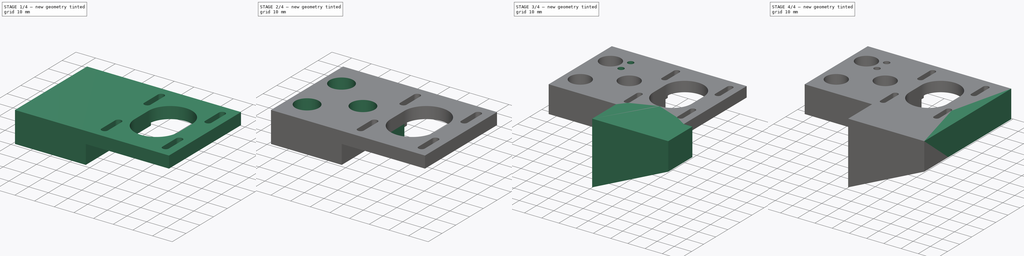
[diagram: build sequence overview — one tinted view per stage of 4, left to right]
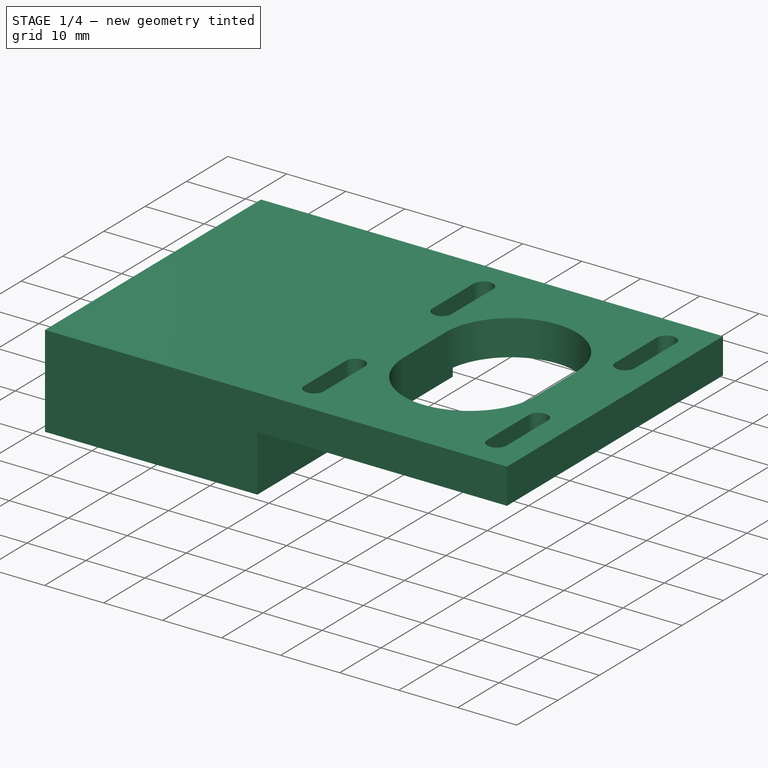
[diagram: stage 1 of 4 — iso view after this stage's code; geometry added in this stage tinted green]
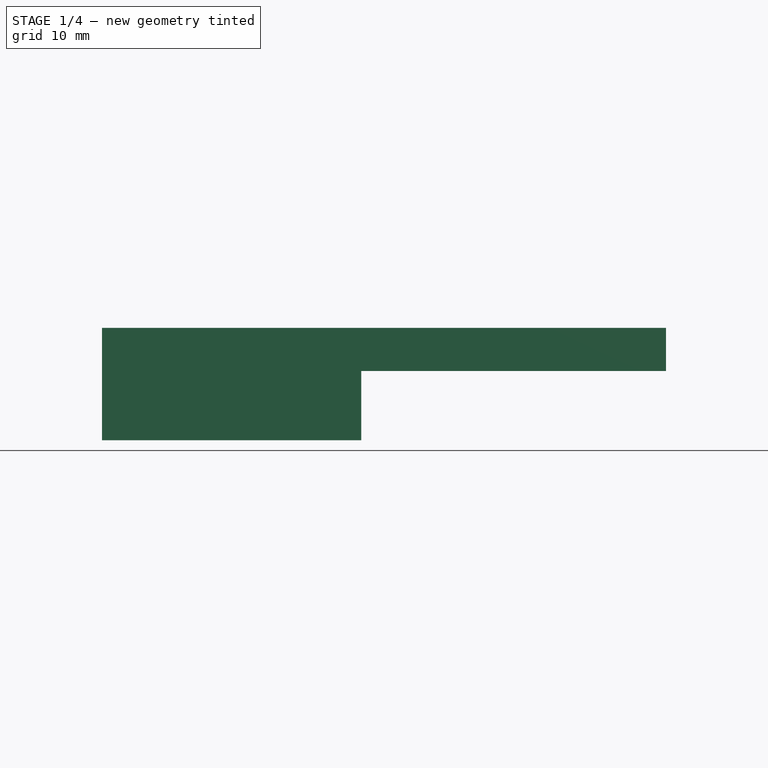
[diagram: stage 1 of 4 — front view after this stage's code; geometry added in this stage tinted green]
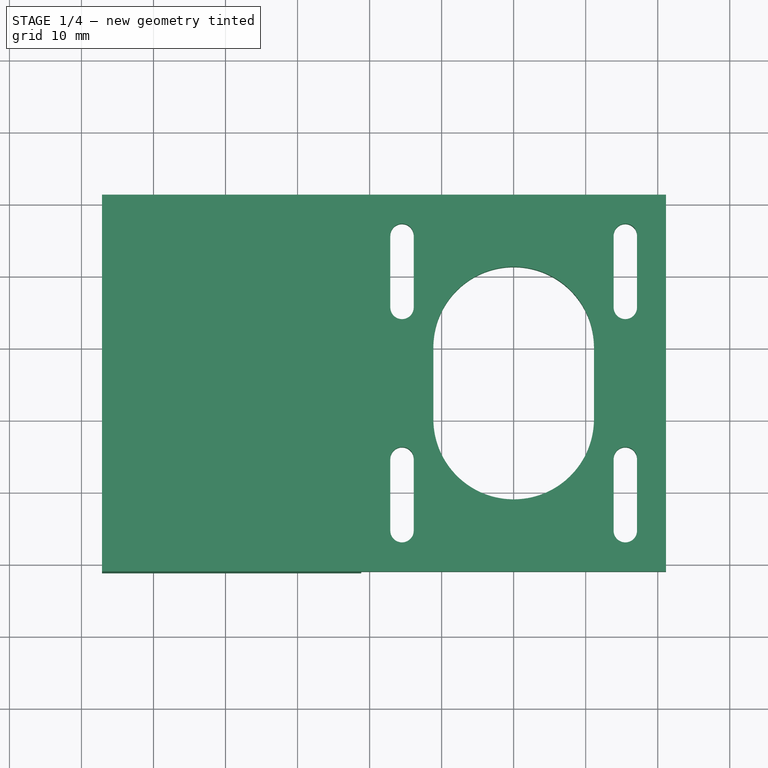
[diagram: stage 1 of 4 — top view after this stage's code; geometry added in this stage tinted green]
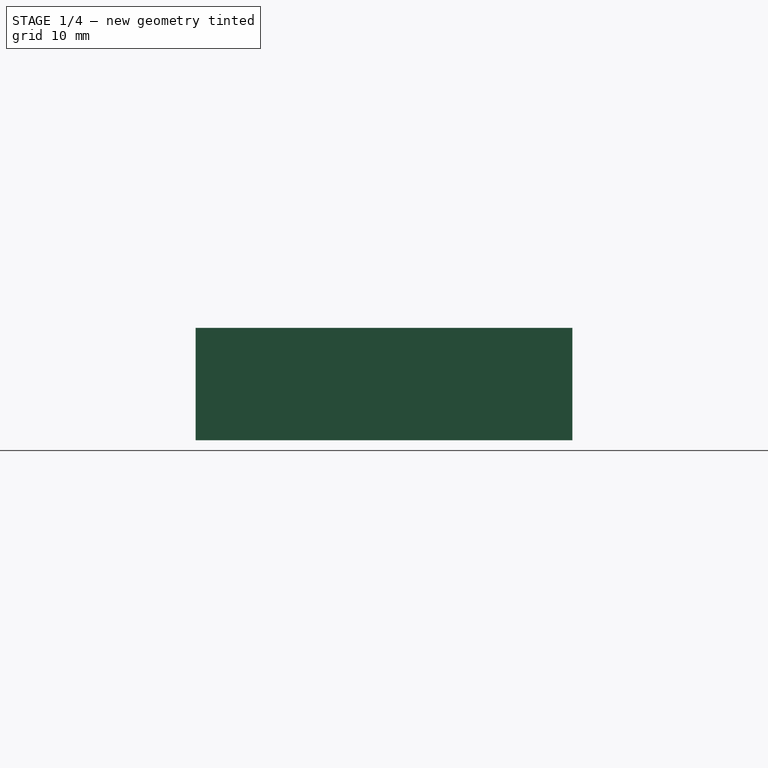
[diagram: stage 1 of 4 — right view after this stage's code; geometry added in this stage tinted green]
FCSTD DOCUMENT  (FreeCAD 0.20R27518 (Git))
Label: A motor bracket
License: All rights reserved
LicenseURL: http://en.wikipedia.org/wiki/All_rights_reserved
objects: Sketcher::SketchObject×13, PartDesign::Pocket×7, PartDesign::Pad×6, PartDesign::Plane×2, Part::Feature×1, PartDesign::SubShapeBinder×1, PartDesign::Body×1
note: 44 computed .brp shape members not serialized (recipe doc carries the construction recipe); baked Part::Feature solids carry a one-line shape summary decoded from their .brp

FEATURE [Part::Feature] Part__Feature  label="17HS4401"
  Placement = pos=(-6e-15,0,46) rot=(0,1,0;3.14159rad)
  shape: bbox 42.3 x 45.3 x 64 mm, 44 faces (baked)
FEATURE [PartDesign::SubShapeBinder] Binder
  BindCopyOnChange = 0
  BindMode = 0
  ClaimChildren = false
  Context = -> Body [Binder.]
  Fuse = false
  MakeFace = true
  PartialLoad = false
  Relative = true
  Support = -> [Part__Feature]
  _Version = 2
FEATURE [Sketcher::SketchObject] Sketch
  ExternalGeometry = -> [Binder]
  FullyConstrained = true
  MapMode = 5
  Support = -> [XY_Plane]
  sketch-geometry (26):
    g0: LineSegment StartX=-21.15 StartY=21.15 StartZ=0 EndX=21.15 EndY=21.15 EndZ=0
    g1: LineSegment StartX=21.15 StartY=21.15 StartZ=0 EndX=21.15 EndY=-31.15 EndZ=0
    g2: LineSegment StartX=21.15 StartY=-31.15 StartZ=0 EndX=-21.15 EndY=-31.15 EndZ=0
    g3: LineSegment StartX=-21.15 StartY=-31.15 StartZ=0 EndX=-21.15 EndY=21.15 EndZ=0
    g4: ArcOfCircle CenterX=-15.5 CenterY=15.5 CenterZ=0 NormalX=0 NormalY=0 NormalZ=1 AngleXU=0 Radius=1.625 StartAngle=0 EndAngle=3.14159
    g5: ArcOfCircle CenterX=-15.5 CenterY=-15.5 CenterZ=0 NormalX=0 NormalY=0 NormalZ=1 AngleXU=0 Radius=1.625 StartAngle=0 EndAngle=3.14159
    g6: ArcOfCircle CenterX=0 CenterY=0 CenterZ=0 NormalX=0 NormalY=0 NormalZ=1 AngleXU=0 Radius=11.15 StartAngle=0 EndAngle=3.14159
    g7: ArcOfCircle CenterX=15.5 CenterY=15.5 CenterZ=0 NormalX=0 NormalY=0 NormalZ=1 AngleXU=0 Radius=1.625 StartAngle=0 EndAngle=3.14159
    g8: ArcOfCircle CenterX=15.5 CenterY=-15.5 CenterZ=0 NormalX=0 NormalY=0 NormalZ=1 AngleXU=0 Radius=1.625 StartAngle=0 EndAngle=3.14159
    g9: LineSegment StartX=-17.125 StartY=15.5 StartZ=0 EndX=-17.125 EndY=5.5 EndZ=0
    g10: ArcOfCircle CenterX=-15.5 CenterY=5.5 CenterZ=0 NormalX=0 NormalY=0 NormalZ=1 AngleXU=0 Radius=1.625 StartAngle=3.14159 EndAngle=6.28318
    g11: LineSegment StartX=13.875 StartY=15.5 StartZ=0 EndX=13.875 EndY=5.5 EndZ=0
    g12: LineSegment StartX=17.125 StartY=15.5 StartZ=0 EndX=17.125 EndY=5.5 EndZ=0
    g13: LineSegment StartX=-17.125 StartY=-15.5 StartZ=0 EndX=-17.125 EndY=-25.5 EndZ=0
    g14: LineSegment StartX=-13.875 StartY=-15.5 StartZ=0 EndX=-13.875 EndY=-25.5 EndZ=0
    g15: LineSegment StartX=13.875 StartY=-15.5 StartZ=0 EndX=13.875 EndY=-25.5 EndZ=0
    g16: LineSegment StartX=17.125 StartY=-15.5 StartZ=0 EndX=17.125 EndY=-25.5 EndZ=0
    g17: LineSegment StartX=-13.875 StartY=15.5 StartZ=0 EndX=-13.875 EndY=5.5 EndZ=0
    g18: ArcOfCircle CenterX=15.5 CenterY=5.5 CenterZ=0 NormalX=0 NormalY=0 NormalZ=1 AngleXU=0 Radius=1.625 StartAngle=3.14159 EndAngle=6.28319
    g19: ArcOfCircle CenterX=-15.5 CenterY=-25.5 CenterZ=0 NormalX=0 NormalY=0 NormalZ=1 AngleXU=0 Radius=1.625 StartAngle=3.14159 EndAngle=6.28319
    g20: ArcOfCircle CenterX=15.5 CenterY=-25.5 CenterZ=0 NormalX=0 NormalY=0 NormalZ=1 AngleXU=0 Radius=1.625 StartAngle=3.14159 EndAngle=6.28319
    g21: LineSegment StartX=-11.15 StartY=1.4e-15 StartZ=0 EndX=-11.15 EndY=-10 EndZ=0
    g22: LineSegment StartX=11.15 StartY=0 StartZ=0 EndX=11.15 EndY=-10 EndZ=0
    g23: ArcOfCircle CenterX=-1e-16 CenterY=-10 CenterZ=0 NormalX=0 NormalY=0 NormalZ=1 AngleXU=0 Radius=11.15 StartAngle=3.14159 EndAngle=6.28319
    g24: LineSegment StartX=-15.5 StartY=15.5 StartZ=0 EndX=-15.5 EndY=21.15 EndZ=0
    g25: LineSegment StartX=-15.5 StartY=-25.5 StartZ=0 EndX=-15.5 EndY=-31.15 EndZ=0
  constraints (82):
    c: Coincident(g0,g1)
    c: Coincident(g1,g2)
    c: Coincident(g2,g3)
    c: Coincident(g3,g0)
    c: Horizontal(g2)
    c: Vertical(g1)
    c: Vertical(g3)
    c: Coincident(g4,g-3)
    c: Coincident(g5,g-5)
    c: Diameter(g4) = 3.25
    c: Coincident(g6,g-1)
    c: PointOnObject(g6,g-1)
    c: PointOnObject(g6,g-1)
    c: Diameter(g6) = 22.3
    c: Horizontal(g4,g4)
    c: Equal(g5,g4)
    c: Horizontal(g5,g5)
    c: Horizontal(g5,g5)
    c: Horizontal(g4,g4)
    c: Coincident(g7,g-4)
    c: Horizontal(g7,g7)
    c: Equal(g4,g7)
    c: Coincident(g8,g-6)
    c: Equal(g8,g4)
    c: Horizontal(g8,g8)
    c: Horizontal(g8,g8)
    c: Horizontal(g7,g7)
    c: Coincident(g9,g4)
    c: Vertical(g9)
    c: Coincident(g10,g9)
    c: Equal(g10,g4)
    c: Vertical(g10,g4)
    c: DistanceY(g10,g4) = 10
    c: Coincident(g11,g7)
    c: Vertical(g11)
    c: Coincident(g12,g7)
    c: Vertical(g12)
    c: Coincident(g13,g5)
    c: Vertical(g13)
    c: Coincident(g14,g5)
    c: Vertical(g14)
    c: Coincident(g15,g8)
    c: Coincident(g16,g8)
    c: Vertical(g16)
    c: Vertical(g15)
    c: Equal(g9,g11)
    c: Equal(g11,g12)
    c: Equal(g12,g13)
    c: Equal(g13,g14)
    c: Equal(g14,g15)
    c: Equal(g15,g16)
    c: Coincident(g17,g4)
    c: Coincident(g17,g10)
    c: Equal(g17,g9)
    c: Coincident(g18,g11)
    c: Coincident(g18,g12)
    c: Coincident(g19,g13)
    c: Coincident(g19,g14)
    c: Coincident(g20,g15)
    c: Coincident(g20,g16)
    c: Equal(g10,g19)
    c: Equal(g19,g18)
    c: Equal(g18,g20)
    c: Coincident(g21,g6)
    c: Vertical(g21)
    c: Coincident(g22,g6)
    c: Vertical(g22)
    c: Equal(g9,g21)
    c: Equal(g21,g22)
    c: Coincident(g23,g21)
    c: Coincident(g23,g22)
    c: Equal(g6,g23)
    c: Symmetric(g0,g0,g-2)
    c: Coincident(g24,g4)
    c: Vertical(g24)
    c: PointOnObject(g24,g0)
    c: Coincident(g25,g19)
    c: PointOnObject(g25,g2)
    c: Vertical(g25)
    c: Equal(g25,g24)
    c: PointOnObject(g-8,g3)
    c: PointOnObject(g-7,g0)
FEATURE [PartDesign::Pad] Pad
  Direction = (0,0,1)
  Length = 6
  Length2 = 100
  Profile = -> Sketch
  ReferenceAxis = -> Sketch [N_Axis]
  Refine = true
  Type = 0
FEATURE [Sketcher::SketchObject] Sketch001
  ExternalGeometry = -> [Pad]
  FullyConstrained = true
  MapMode = 5
  Placement = pos=(-21.15,0,0) rot=(0.57735,-0.57735,-0.57735;2.0944rad)
  Support = -> [Pad]
  sketch-geometry (4):
    g0: LineSegment StartX=-21.15 StartY=6 StartZ=0 EndX=31.15 EndY=6 EndZ=0
    g1: LineSegment StartX=31.15 StartY=6 StartZ=0 EndX=31.15 EndY=-9.6 EndZ=0
    g2: LineSegment StartX=31.15 StartY=-9.6 StartZ=0 EndX=-21.15 EndY=-9.6 EndZ=0
    g3: LineSegment StartX=-21.15 StartY=-9.6 StartZ=0 EndX=-21.15 EndY=6 EndZ=0
  constraints (10):
    c: Coincident(g0,g1)
    c: Coincident(g1,g2)
    c: Coincident(g2,g3)
    c: Coincident(g3,g0)
    c: Horizontal(g2)
    c: Vertical(g1)
    c: Vertical(g3)
    c: DistanceY(g1,g-1) = 9.6
    c: Coincident(g-3,g0)
    c: Coincident(g0,g-4)
FEATURE [PartDesign::Pad] Pad001
  BaseFeature = -> Pad
  Direction = (-1,0,0)
  Length = 36
  Length2 = 100
  Profile = -> Sketch001
  ReferenceAxis = -> Sketch001 [N_Axis]
  Refine = true
  Type = 0
FEATURE [Sketcher::SketchObject] Sketch002
  ExternalGeometry = -> [Pad001]
  FullyConstrained = true
  MapMode = 5
  Placement = pos=(0,21.15,0) rot=(0,0.707107,0.707107;3.14159rad)
  Support = -> [Pad001]
  sketch-geometry (4):
    g0: LineSegment StartX=21.15 StartY=0 StartZ=0 EndX=36.15 EndY=0 EndZ=0
    g1: LineSegment StartX=36.15 StartY=0 StartZ=0 EndX=36.15 EndY=-9.6 EndZ=0
    g2: LineSegment StartX=36.15 StartY=-9.6 StartZ=0 EndX=21.15 EndY=-9.6 EndZ=0
    g3: LineSegment StartX=21.15 StartY=-9.6 StartZ=0 EndX=21.15 EndY=0 EndZ=0
  constraints (10):
    c: Coincident(g0,g1)
    c: Coincident(g1,g2)
    c: Coincident(g2,g3)
    c: Coincident(g3,g0)
    c: Horizontal(g0)
    c: Horizontal(g2)
    c: Vertical(g1)
    c: Coincident(g0,g-3)
    c: Coincident(g2,g-3)
    c: DistanceX(g0,g0) = 15
FEATURE [PartDesign::Pocket] Pocket
  BaseFeature = -> Pad001
  Direction = (0,-1,2e-16)
  Length = 5
  Length2 = 100
  Profile = -> Sketch002
  ReferenceAxis = -> Sketch002 [N_Axis]
  Refine = true
  Type = 0
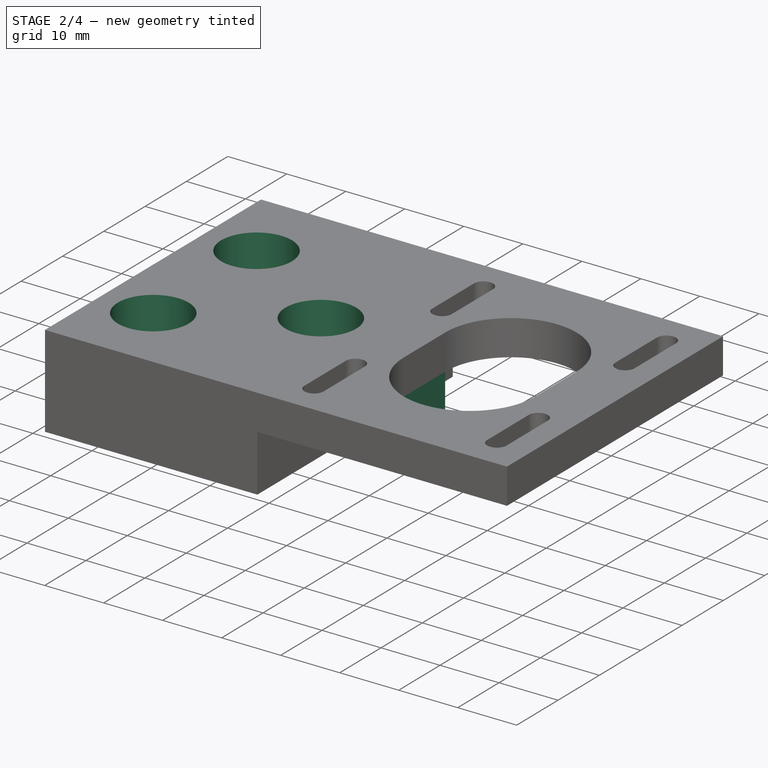
[diagram: stage 2 of 4 — iso view after this stage's code; geometry added in this stage tinted green]
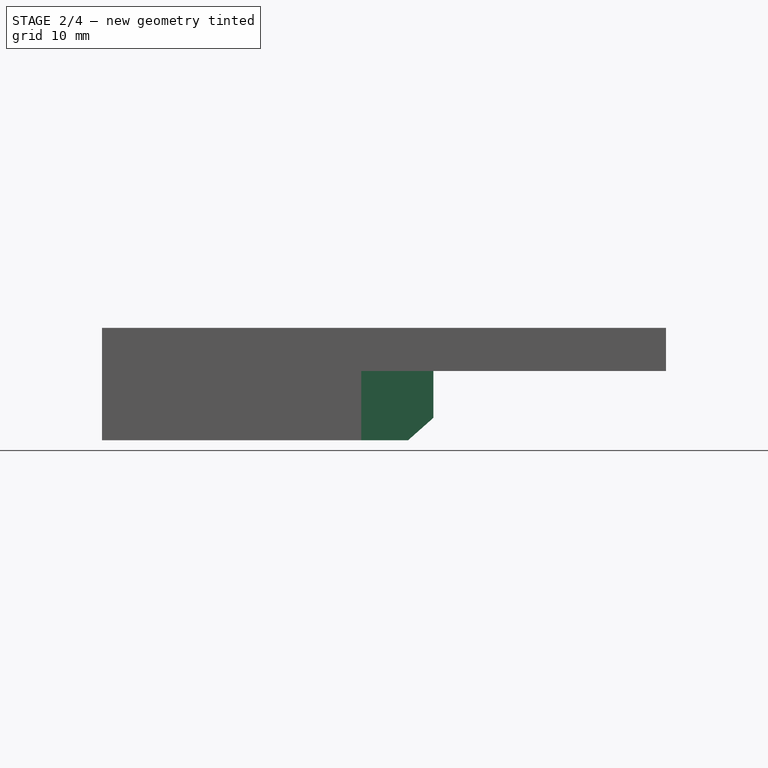
[diagram: stage 2 of 4 — front view after this stage's code; geometry added in this stage tinted green]
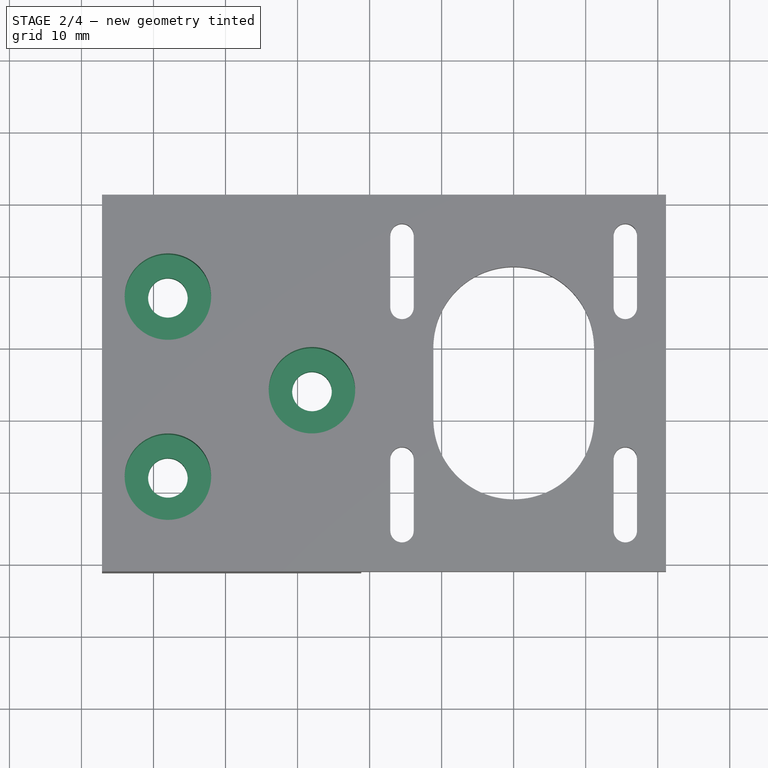
[diagram: stage 2 of 4 — top view after this stage's code; geometry added in this stage tinted green]
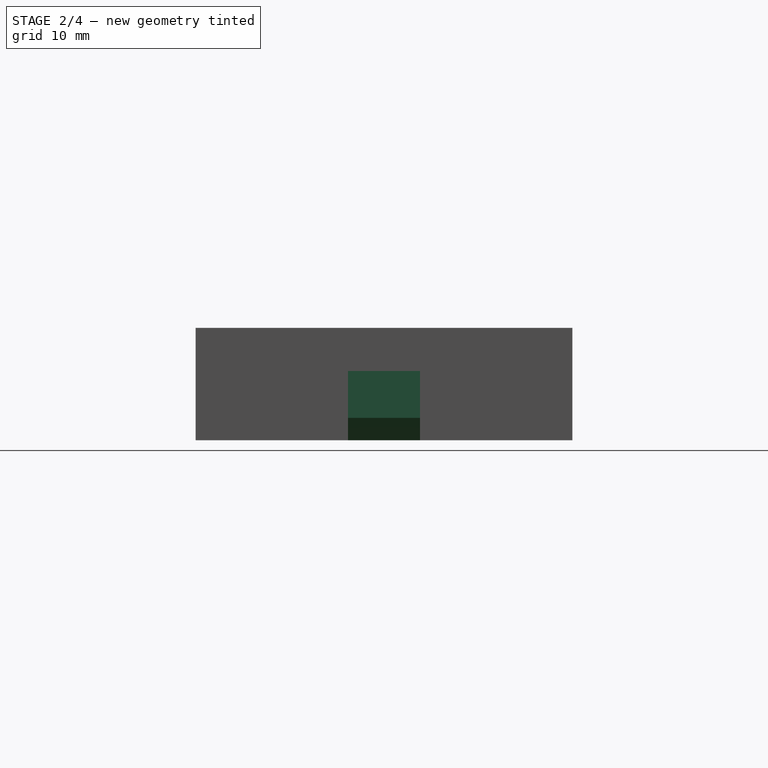
[diagram: stage 2 of 4 — right view after this stage's code; geometry added in this stage tinted green]
FEATURE [Sketcher::SketchObject] Sketch003
  FullyConstrained = true
  MapMode = 5
  Placement = pos=(0,0,-9.6) rot=(1,0,0;3.14159rad)
  Support = -> [Pocket]
  sketch-geometry (3):
    g0: Circle CenterX=-48 CenterY=18 CenterZ=0 NormalX=0 NormalY=0 NormalZ=1 AngleXU=0 Radius=2.75
    g1: Circle CenterX=-48 CenterY=-7 CenterZ=0 NormalX=0 NormalY=0 NormalZ=1 AngleXU=0 Radius=2.75
    g2: Circle CenterX=-28 CenterY=6 CenterZ=0 NormalX=0 NormalY=0 NormalZ=1 AngleXU=0 Radius=2.75
  constraints (9):
    c: Diameter(g0) = 5.5
    c: Equal(g0,g1)
    c: Vertical(g1,g0)
    c: DistanceY(g1,g-1) = 7
    c: DistanceY(g-1,g0) = 18
    c: DistanceX(g0,g-1) = 48
    c: Equal(g0,g2)
    c: DistanceX(g0,g2) = 20
    c: DistanceY(g2,g0) = 12
FEATURE [PartDesign::Pocket] Pocket001
  BaseFeature = -> Pocket
  Direction = (0,0,1)
  Length = 5
  Length2 = 100
  Profile = -> Sketch003
  ReferenceAxis = -> Sketch003 [N_Axis]
  Refine = true
  Type = 1
FEATURE [Sketcher::SketchObject] Sketch004
  ExternalGeometry = -> [Pocket001]
  FullyConstrained = true
  MapMode = 5
  Placement = pos=(0,0,6) rot=(0,0,1;0rad)
  Support = -> [Pocket001]
  sketch-geometry (3):
    g0: Circle CenterX=-48 CenterY=7 CenterZ=0 NormalX=0 NormalY=0 NormalZ=1 AngleXU=0 Radius=6
    g1: Circle CenterX=-48 CenterY=-18 CenterZ=0 NormalX=0 NormalY=0 NormalZ=1 AngleXU=0 Radius=6
    g2: Circle CenterX=-28 CenterY=-6 CenterZ=0 NormalX=0 NormalY=0 NormalZ=1 AngleXU=0 Radius=6
  constraints (6):
    c: Coincident(g1,g-3)
    c: Equal(g1,g0)
    c: Diameter(g0) = 12
    c: Coincident(g0,g-4)
    c: Coincident(g2,g-5)
    c: Equal(g0,g2)
FEATURE [PartDesign::Pocket] Pocket002
  BaseFeature = -> Pocket001
  Direction = (0,0,-1)
  Length = 0
  Length2 = 100
  Offset = 6
  Profile = -> Sketch004
  ReferenceAxis = -> Sketch004 [N_Axis]
  Refine = true
  Reversed = true
  Type = 3
  UpToFace = -> Pocket001 [Face7]
FEATURE [Sketcher::SketchObject] Sketch006
  FullyConstrained = false
  MapMode = 5
  Placement = pos=(0,0,0) rot=(1,0,0;1.5708rad)
  Support = -> [XZ_Plane]
  sketch-geometry (5):
    g0: LineSegment StartX=-11.15 StartY=-6.5 StartZ=0 EndX=-14.65 EndY=-9.6 EndZ=0
    g1: LineSegment StartX=-21.15 StartY=-9.6 StartZ=0 EndX=-14.65 EndY=-9.6 EndZ=0
    g2: LineSegment StartX=-11.15 StartY=0 StartZ=0 EndX=-11.15 EndY=-6.5 EndZ=0
    g3: LineSegment StartX=-21.15 StartY=-9.6 StartZ=0 EndX=-21.15 EndY=0 EndZ=0
    g4: LineSegment StartX=-21.15 StartY=0 StartZ=0 EndX=-11.15 EndY=0 EndZ=0
  constraints (9):
    c: Horizontal(g1)
    c: Vertical(g2)
    c: Coincident(g0,g2)
    c: Coincident(g1,g0)
    c: Equal(g1,g2)
    c: DistanceX(g1,g1) = 6.5
    c: Coincident(g3,g1)
    c: Coincident(g4,g3)
    c: Coincident(g4,g2)
FEATURE [PartDesign::Pad] Pad002
  BaseFeature = -> Pocket002
  Direction = (0,-1,-2e-16)
  Length = 10
  Length2 = 100
  Profile = -> Sketch006
  ReferenceAxis = -> Sketch006 [N_Axis]
  Refine = true
  Type = 0
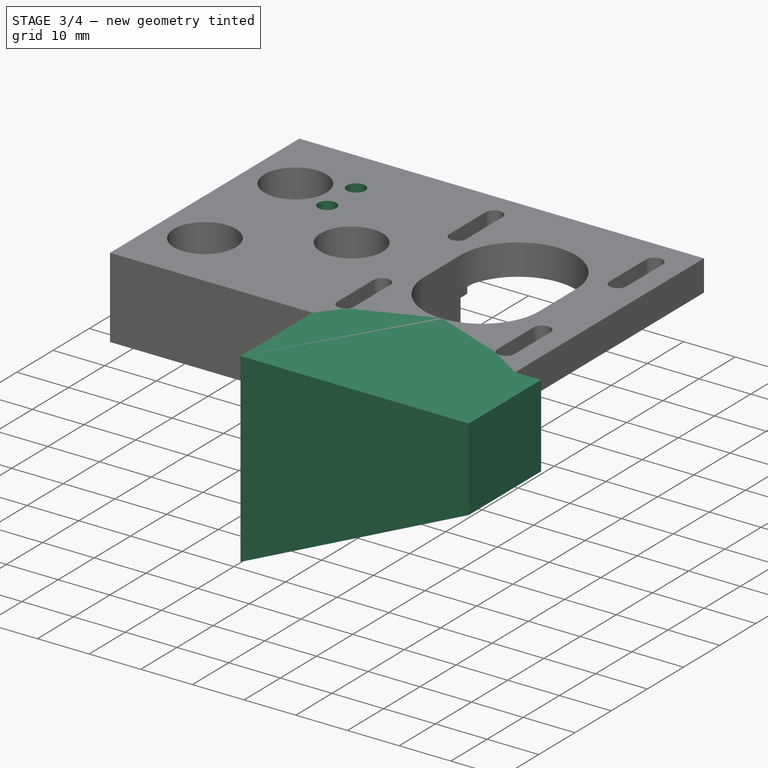
[diagram: stage 3 of 4 — iso view after this stage's code; geometry added in this stage tinted green]
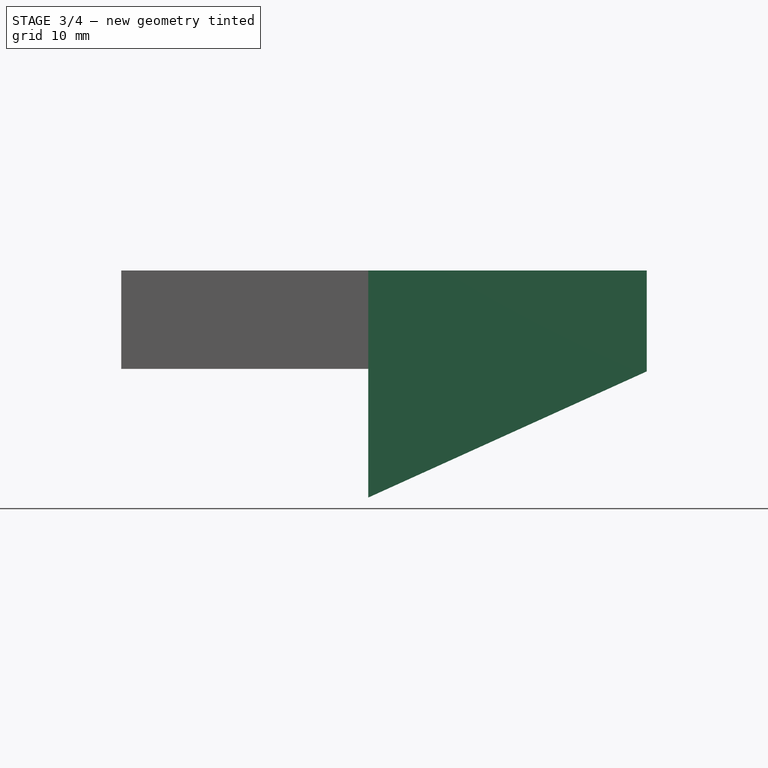
[diagram: stage 3 of 4 — front view after this stage's code; geometry added in this stage tinted green]
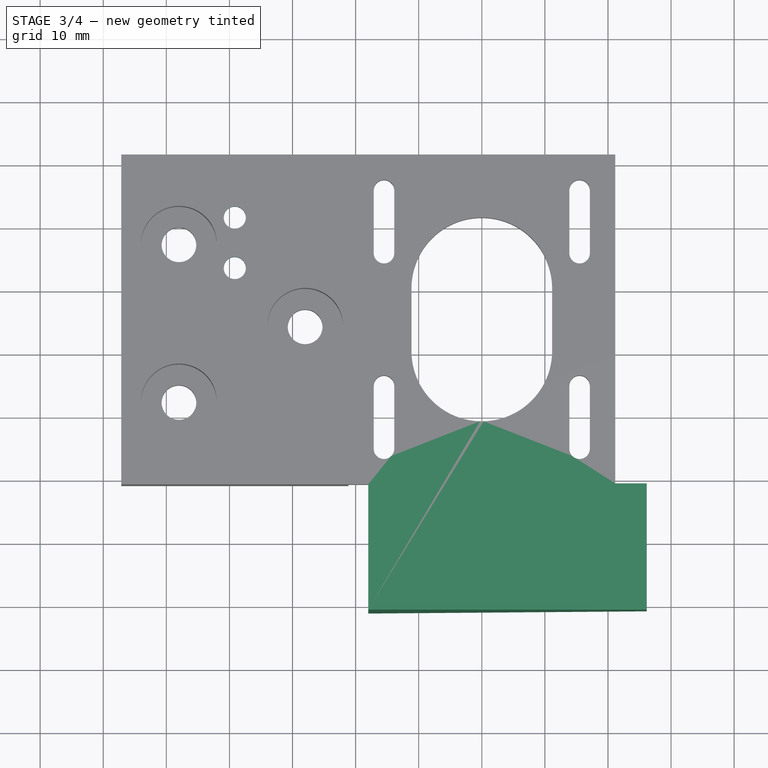
[diagram: stage 3 of 4 — top view after this stage's code; geometry added in this stage tinted green]
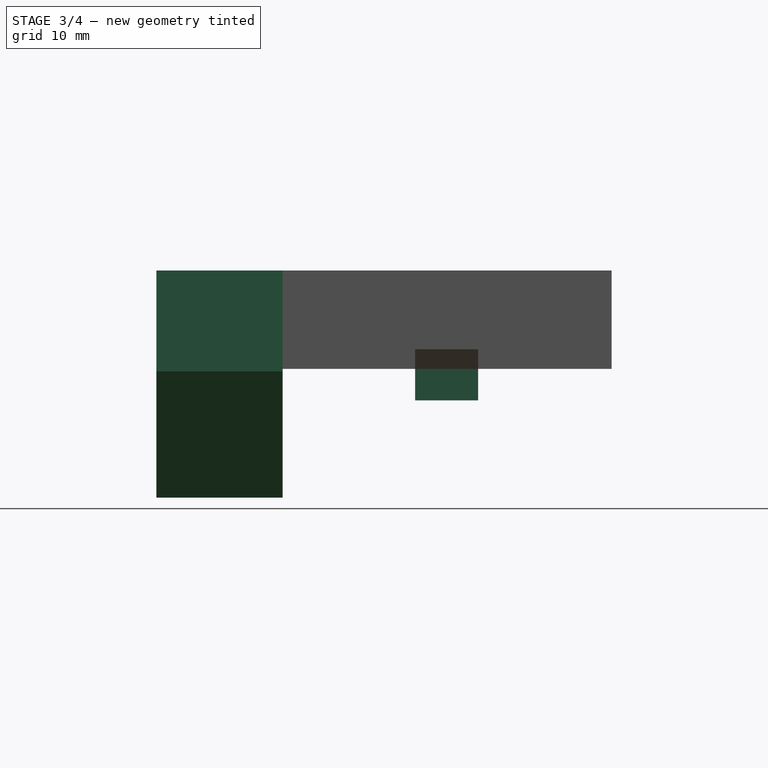
[diagram: stage 3 of 4 — right view after this stage's code; geometry added in this stage tinted green]
FEATURE [Sketcher::SketchObject] Sketch007
  FullyConstrained = true
  MapMode = 5
  Placement = pos=(-2e-16,1e-16,-9.6) rot=(1,0,0;3.14159rad)
  Support = -> [Pad002]
  sketch-geometry (4):
    g0: LineSegment StartX=-18 StartY=10 StartZ=0 EndX=-14.65 EndY=10 EndZ=0
    g1: LineSegment StartX=-14.65 StartY=10 StartZ=0 EndX=-14.65 EndY=0 EndZ=0
    g2: LineSegment StartX=-14.65 StartY=0 StartZ=0 EndX=-18 EndY=0 EndZ=0
    g3: LineSegment StartX=-18 StartY=0 StartZ=0 EndX=-18 EndY=10 EndZ=0
  constraints (12):
    c: Coincident(g0,g1)
    c: Coincident(g1,g2)
    c: Coincident(g2,g3)
    c: Coincident(g3,g0)
    c: Horizontal(g0)
    c: Horizontal(g2)
    c: Vertical(g1)
    c: Vertical(g3)
    c: PointOnObject(g1,g-1)
    c: DistanceX(g0,g0) = 3.35
    c: DistanceY(g1,g1) = 10
    c: DistanceX(g1,g-1) = 14.65
FEATURE [PartDesign::Pad] Pad003
  BaseFeature = -> Pad002
  Direction = (0,0,-1)
  Length = 5
  Length2 = 100
  Profile = -> Sketch007
  ReferenceAxis = -> Sketch007 [N_Axis]
  Refine = true
  Type = 0
FEATURE [Sketcher::SketchObject] Sketch008
  FullyConstrained = true
  MapMode = 5
  Placement = pos=(0,0,6) rot=(0,0,1;0rad)
  Support = -> [Pad003]
  sketch-geometry (2):
    g0: Circle CenterX=-39.15 CenterY=3.15 CenterZ=0 NormalX=0 NormalY=0 NormalZ=1 AngleXU=0 Radius=1.75
    g1: Circle CenterX=-39.15 CenterY=11.15 CenterZ=0 NormalX=0 NormalY=0 NormalZ=1 AngleXU=0 Radius=1.75
  constraints (6):
    c: Diameter(g0) = 3.5
    c: Vertical(g0,g1)
    c: DistanceY(g0,g1) = 8
    c: Equal(g0,g1)
    c: DistanceX(g0,g-1) = 39.15
    c: DistanceY(g0) = 3.15
FEATURE [PartDesign::Pocket] Pocket004
  BaseFeature = -> Pad003
  Direction = (0,0,-1)
  Length = 5
  Length2 = 100
  Profile = -> Sketch008
  ReferenceAxis = -> Sketch008 [N_Axis]
  Refine = true
  Type = 1
FEATURE [Sketcher::SketchObject] Sketch009
  ExternalGeometry = -> [Pocket004]
  FullyConstrained = true
  MapMode = 5
  Placement = pos=(-2e-16,1e-16,-9.6) rot=(1,0,0;3.14159rad)
  Support = -> [Pocket004]
  sketch-geometry (14):
    g0: LineSegment StartX=-35.9 StartY=-3.15 StartZ=0 EndX=-37.525 EndY=-0.335417 EndZ=0
    g1: LineSegment StartX=-37.525 StartY=-0.335417 StartZ=0 EndX=-40.775 EndY=-0.335417 EndZ=0
    g2: LineSegment StartX=-40.775 StartY=-0.335417 StartZ=0 EndX=-42.4 EndY=-3.15 EndZ=0
    g3: LineSegment StartX=-42.4 StartY=-3.15 StartZ=0 EndX=-40.775 EndY=-5.96458 EndZ=0
    g4: LineSegment StartX=-40.775 StartY=-5.96458 StartZ=0 EndX=-37.525 EndY=-5.96458 EndZ=0
    g5: LineSegment StartX=-37.525 StartY=-5.96458 StartZ=0 EndX=-35.9 EndY=-3.15 EndZ=0
    g6: Circle CenterX=-39.15 CenterY=-3.15 CenterZ=0 NormalX=0 NormalY=0 NormalZ=1 AngleXU=0 Radius=3.25
    g7: LineSegment StartX=-35.9 StartY=-11.15 StartZ=0 EndX=-37.525 EndY=-8.33542 EndZ=0
    g8: LineSegment StartX=-37.525 StartY=-8.33542 StartZ=0 EndX=-40.775 EndY=-8.33542 EndZ=0
    g9: LineSegment StartX=-40.775 StartY=-8.33542 StartZ=0 EndX=-42.4 EndY=-11.15 EndZ=0
    g10: LineSegment StartX=-42.4 StartY=-11.15 StartZ=0 EndX=-40.775 EndY=-13.9646 EndZ=0
    g11: LineSegment StartX=-40.775 StartY=-13.9646 StartZ=0 EndX=-37.525 EndY=-13.9646 EndZ=0
    g12: LineSegment StartX=-37.525 StartY=-13.9646 StartZ=0 EndX=-35.9 EndY=-11.15 EndZ=0
    g13: Circle CenterX=-39.15 CenterY=-11.15 CenterZ=0 NormalX=0 NormalY=0 NormalZ=1 AngleXU=0 Radius=3.25
  constraints (32):
    c: Coincident(g0,g1)
    c: Coincident(g1,g2)
    c: Coincident(g2,g3)
    c: Coincident(g3,g4)
    c: Coincident(g4,g5)
    c: Coincident(g5,g0)
    c: Equal(g0, g1-g5) x5
    c: PointOnObject(g0,g6)
    c: PointOnObject(g1,g6)
    c: PointOnObject(g2,g6)
    c: PointOnObject(g3,g6)
    c: PointOnObject(g4,g6)
    c: PointOnObject(g5,g6)
    c: Coincident(g7,g8)
    c: Coincident(g8,g9)
    c: Coincident(g9,g10)
    c: Coincident(g10,g11)
    c: Coincident(g11,g12)
    c: Coincident(g12,g7)
    c: Equal(g7, g8-g12) x5
    c: PointOnObject(g7,g13)
    c: PointOnObject(g8,g13)
    c: PointOnObject(g9,g13)
    c: PointOnObject(g10,g13)
    c: PointOnObject(g11,g13)
    c: PointOnObject(g12,g13)
    c: Equal(g13,g6)
    c: Diameter(g6) = 6.5
    c: Horizontal(g8)
    c: Horizontal(g1)
    c: Coincident(g6,g-3)
    c: Coincident(g13,g-4)
FEATURE [PartDesign::Pocket] Pocket005
  BaseFeature = -> Pocket004
  Direction = (0,0,1)
  Length = 0
  Length2 = 100
  Offset = 3
  Profile = -> Sketch009
  ReferenceAxis = -> Sketch009 [N_Axis]
  Refine = true
  Reversed = true
  Type = 3
  UpToFace = -> Pocket004 [Face5]
FEATURE [PartDesign::Plane] DatumPlane
  AttachmentOffset = pos=(0,0,31) rot=(0,0,1;0rad)
  Length = 60
  MapMode = 5
  Placement = pos=(0,-31,-6.9e-15) rot=(1,0,0;1.5708rad)
  ResizeMode = 0
  Support = -> [XZ_Plane]
  Width = 60
FEATURE [Sketcher::SketchObject] Sketch010
  FullyConstrained = true
  MapMode = 5
  Placement = pos=(0,-31,-6.9e-15) rot=(1,0,0;1.5708rad)
  Support = -> [DatumPlane]
  sketch-geometry (5):
    g0: LineSegment StartX=-18 StartY=-30 StartZ=0 EndX=-18 EndY=6 EndZ=0
    g1: LineSegment StartX=-18 StartY=6 StartZ=0 EndX=26.15 EndY=6 EndZ=0
    g2: LineSegment StartX=26.15 StartY=6 StartZ=0 EndX=26.15 EndY=0 EndZ=0
    g3: LineSegment StartX=26.15 StartY=0 StartZ=0 EndX=26.15 EndY=-10 EndZ=0
    g4: LineSegment StartX=-18 StartY=-30 StartZ=0 EndX=26.15 EndY=-10 EndZ=0
  constraints (15):
    c: Vertical(g0)
    c: DistanceX(g0,g-1) = 18
    c: DistanceY(g0,g0) = 36
    c: Coincident(g1,g0)
    c: Horizontal(g1)
    c: DistanceY(g-1,g0) = 6
    c: DistanceX(g1,g1) = 44.15
    c: Coincident(g2,g1)
    c: PointOnObject(g2,g-1)
    c: Vertical(g2)
    c: Coincident(g3,g2)
    c: Vertical(g3)
    c: DistanceY(g3,g3) = 10
    c: Coincident(g4,g0)
    c: Coincident(g4,g3)
FEATURE [PartDesign::Pad] Pad004
  BaseFeature = -> Pocket005
  Direction = (0,-1,-2e-16)
  Length = 20
  Length2 = 10
  Profile = -> Sketch010
  ReferenceAxis = -> Sketch010 [N_Axis]
  Refine = true
  Type = 0
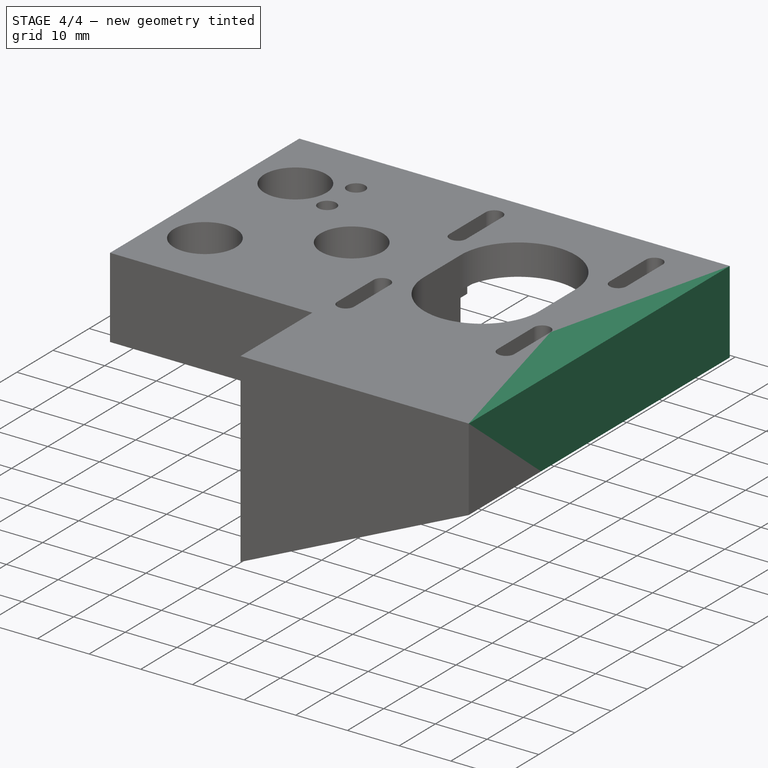
[diagram: stage 4 of 4 — iso view after this stage's code; geometry added in this stage tinted green]
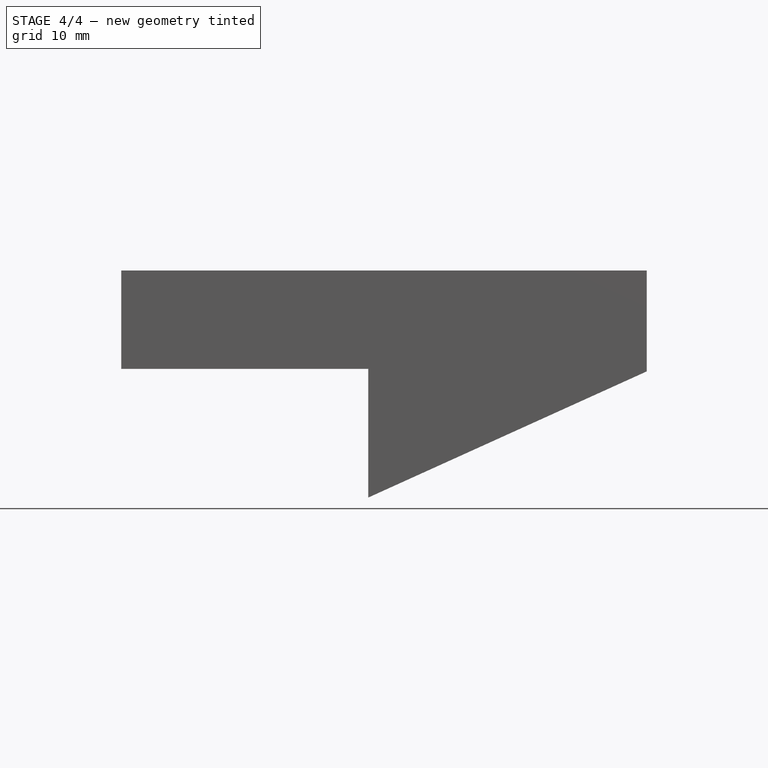
[diagram: stage 4 of 4 — front view after this stage's code; geometry added in this stage tinted green]
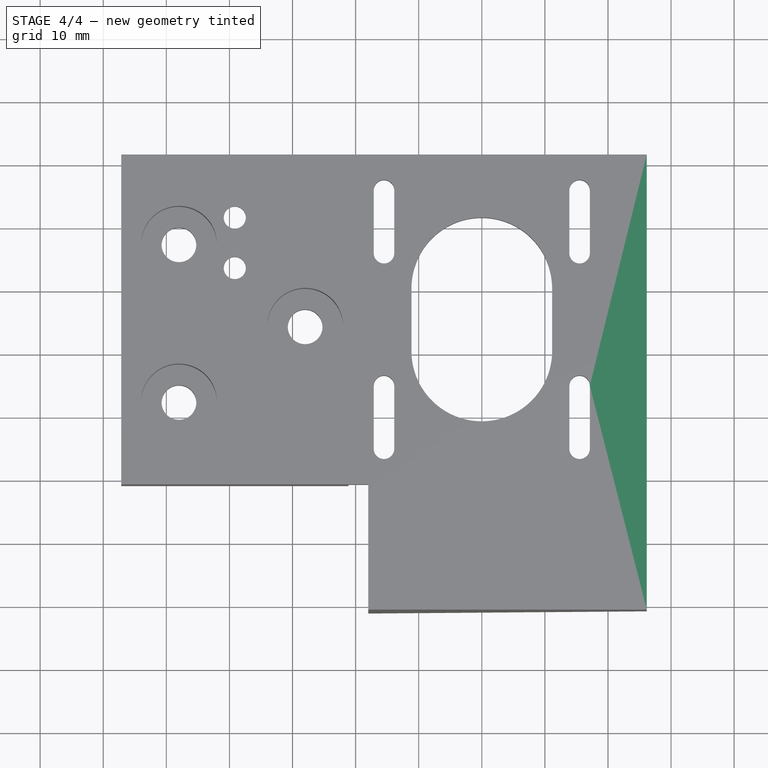
[diagram: stage 4 of 4 — top view after this stage's code; geometry added in this stage tinted green]
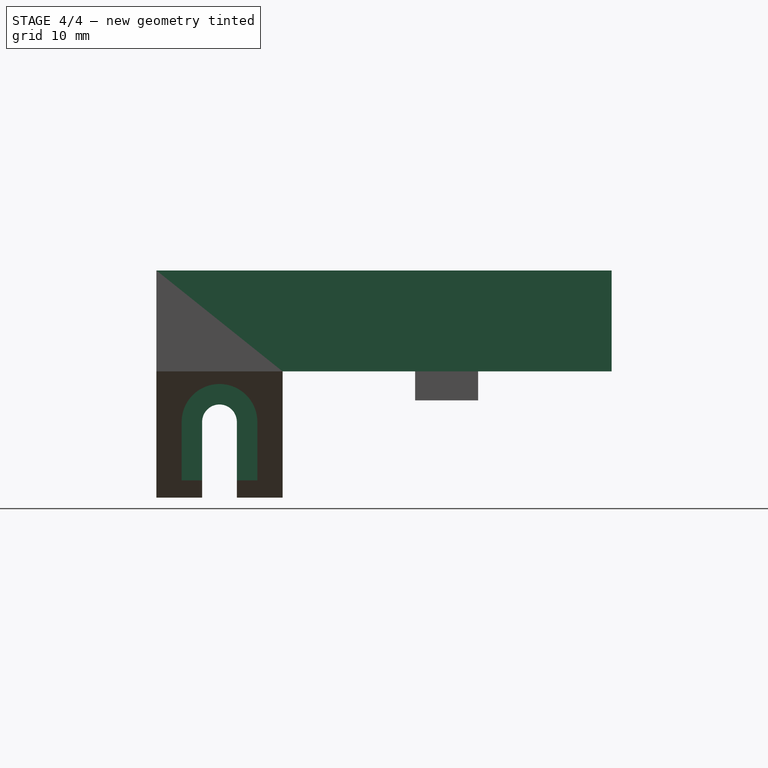
[diagram: stage 4 of 4 — right view after this stage's code; geometry added in this stage tinted green]
FEATURE [Sketcher::SketchObject] Sketch011
  FullyConstrained = true
  MapMode = 5
  Placement = pos=(0,-31,-6.9e-15) rot=(1,0,0;1.5708rad)
  Support = -> [DatumPlane]
  sketch-geometry (4):
    g0: LineSegment StartX=21.15 StartY=6 StartZ=0 EndX=21.15 EndY=-10 EndZ=0
    g1: LineSegment StartX=21.15 StartY=6 StartZ=0 EndX=26.15 EndY=6 EndZ=0
    g2: LineSegment StartX=21.15 StartY=-10 StartZ=0 EndX=26.15 EndY=-10 EndZ=0
    g3: LineSegment StartX=26.15 StartY=-10 StartZ=0 EndX=26.15 EndY=6 EndZ=0
  constraints (12):
    c: Vertical(g0)
    c: DistanceY(g0,g0) = 16
    c: DistanceY(g-1,g0) = 6
    c: DistanceX(g-1,g0) = 21.15
    c: Coincident(g1,g0)
    c: Horizontal(g1)
    c: DistanceX(g1,g1) = 5
    c: Coincident(g2,g0)
    c: Horizontal(g2)
    c: Coincident(g3,g2)
    c: Coincident(g3,g1)
    c: Vertical(g3)
FEATURE [PartDesign::Pad] Pad005
  BaseFeature = -> Pad004
  Direction = (0,-1,-2e-16)
  Length = 52.15
  Length2 = 10
  Profile = -> Sketch011
  ReferenceAxis = -> Sketch011 [N_Axis]
  Refine = true
  Reversed = true
  Type = 0
FEATURE [PartDesign::Plane] DatumPlane001
  AttachmentOffset = pos=(0,0,12) rot=(0,0,1;0rad)
  Length = 60
  MapMode = 5
  Placement = pos=(-12,2.7e-15,-2.7e-15) rot=(-0.57735,0.57735,0.57735;4.18879rad)
  ResizeMode = 0
  Support = -> [YZ_Plane]
  Width = 60
FEATURE [Sketcher::SketchObject] Sketch012
  FullyConstrained = true
  MapMode = 5
  Placement = pos=(-12,2.7e-15,-2.7e-15) rot=(0.57735,0.57735,0.57735;2.0944rad)
  Support = -> [DatumPlane001]
  sketch-geometry (4):
    g0: ArcOfCircle CenterX=-41 CenterY=-18 CenterZ=0 NormalX=0 NormalY=0 NormalZ=1 AngleXU=0 Radius=6 StartAngle=1e-16 EndAngle=3.14159
    g1: ArcOfCircle CenterX=-41 CenterY=-38 CenterZ=0 NormalX=0 NormalY=0 NormalZ=1 AngleXU=0 Radius=6 StartAngle=3.14159 EndAngle=6.28319
    g2: LineSegment StartX=-47 StartY=-18 StartZ=0 EndX=-47 EndY=-38 EndZ=0
    g3: LineSegment StartX=-35 StartY=-38 StartZ=0 EndX=-35 EndY=-18 EndZ=0
  constraints (10):
    c: Tangent(g0,g2) = -1.5708
    c: Tangent(g2,g1) = -1.5708
    c: Tangent(g1,g3) = -1.5708
    c: Tangent(g3,g0) = -1.5708
    c: Equal(g0,g1)
    c: Vertical(g2)
    c: DistanceX(g0,g-1) = 41
    c: Diameter(g0) = 12
    c: DistanceY(g3,g3) = 20
    c: DistanceY(g0,g-1) = 18
FEATURE [PartDesign::Pocket] Pocket006
  BaseFeature = -> Pad005
  Direction = (-1,4e-16,-2e-16)
  Length = 5
  Length2 = 5
  Profile = -> Sketch012
  ReferenceAxis = -> Sketch012 [N_Axis]
  Refine = true
  Reversed = true
  Type = 1
FEATURE [Sketcher::SketchObject] Sketch013
  ExternalGeometry = -> [Sketch012]
  FullyConstrained = true
  MapMode = 5
  Placement = pos=(-12,2.7e-15,-2.7e-15) rot=(-0.57735,0.57735,0.57735;4.18879rad)
  Support = -> [DatumPlane001]
  sketch-geometry (4):
    g0: ArcOfCircle CenterX=41 CenterY=-18 CenterZ=0 NormalX=0 NormalY=0 NormalZ=1 AngleXU=0 Radius=2.75 StartAngle=-1.7435e-12 EndAngle=3.14159
    g1: ArcOfCircle CenterX=41 CenterY=-38 CenterZ=0 NormalX=0 NormalY=0 NormalZ=1 AngleXU=0 Radius=2.75 StartAngle=3.14159 EndAngle=6.28319
    g2: LineSegment StartX=38.25 StartY=-18 StartZ=0 EndX=38.25 EndY=-38 EndZ=0
    g3: LineSegment StartX=43.75 StartY=-38 StartZ=0 EndX=43.75 EndY=-18 EndZ=0
  constraints (8):
    c: Tangent(g0,g2) = -1.5708
    c: Tangent(g2,g1) = -1.5708
    c: Tangent(g1,g3) = -1.5708
    c: Tangent(g3,g0) = -1.5708
    c: Equal(g0,g1)
    c: Coincident(g0,g-3)
    c: Diameter(g0) = 5.5
    c: Coincident(g1,g-4)
FEATURE [PartDesign::Pocket] Pocket007
  BaseFeature = -> Pocket006
  Direction = (1,-4e-16,2e-16)
  Length = 5
  Length2 = 5
  Profile = -> Sketch013
  ReferenceAxis = -> Sketch013 [N_Axis]
  Refine = true
  Reversed = true
  Type = 1
FEATURE [PartDesign::Body] Body
  Group = -> [Sketch,Binder,Pad,Sketch001,Pad001,Sketch002,Pocket,Sketch003,Pocket001,Sketch004,Pocket002,Sketch006,Pad002,Sketch007,Pad003,Sketch008,Pocket004,Sketch009,Pocket005,DatumPlane,Sketch010,Pad004,Sketch011,Pad005,DatumPlane001,Sketch012,Pocket006,Sketch013,Pocket007]
  Origin = -> Origin
  Tip = -> Pocket007
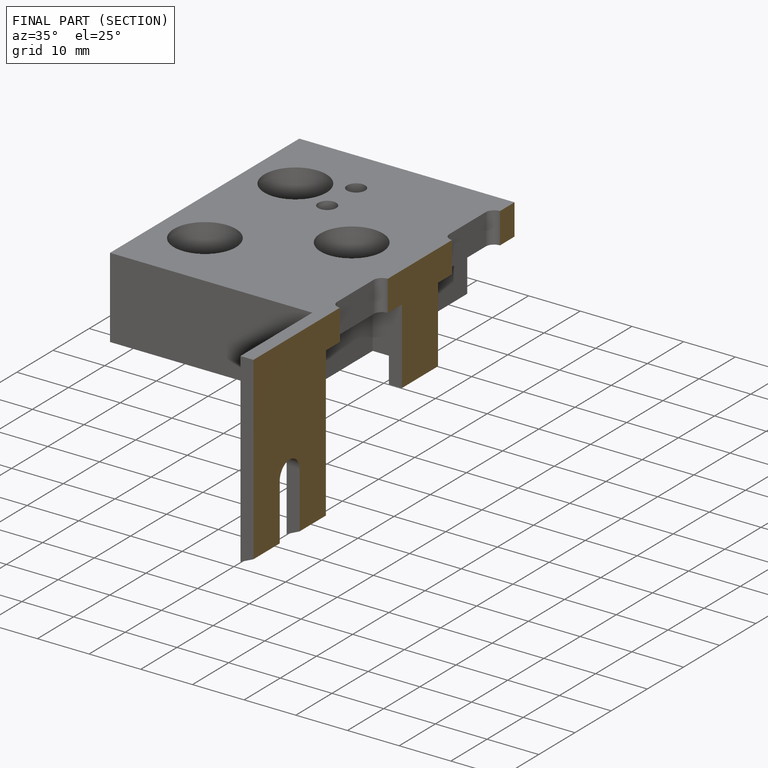
[diagram: finished part — half-section view (interior)]
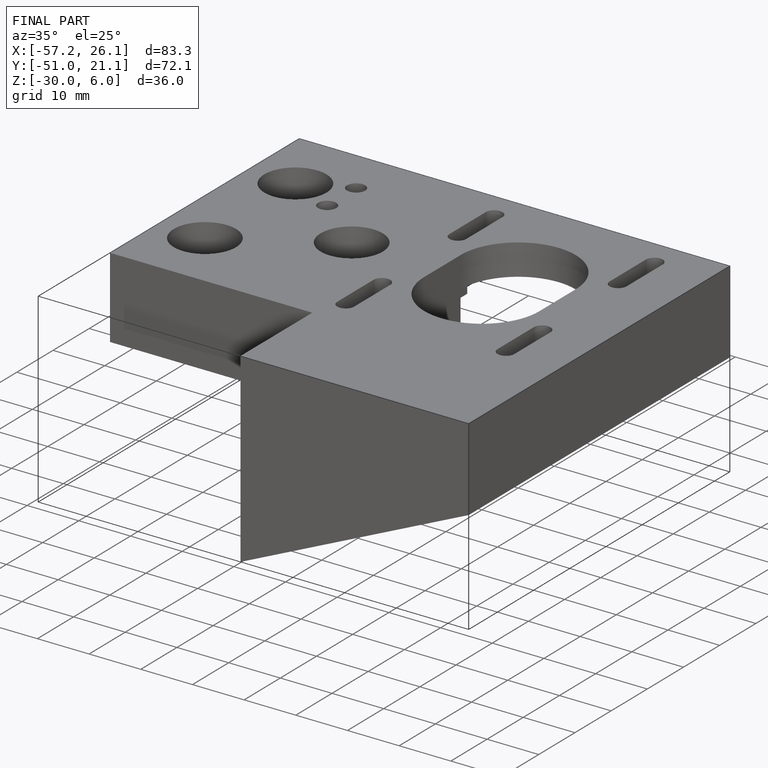
[diagram: finished part — iso view with bounding-box wireframe]
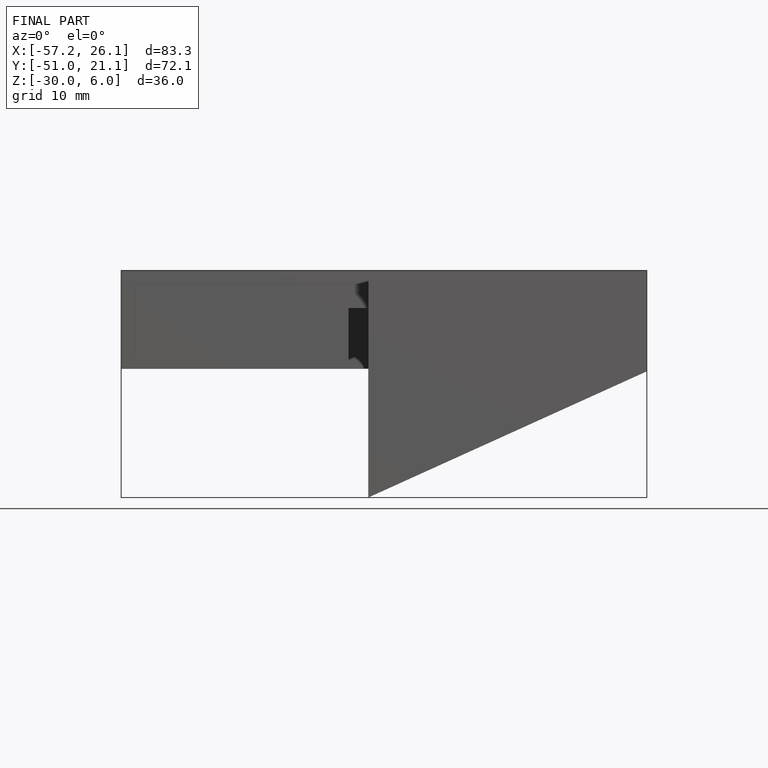
[diagram: finished part — front view with bounding-box wireframe]
